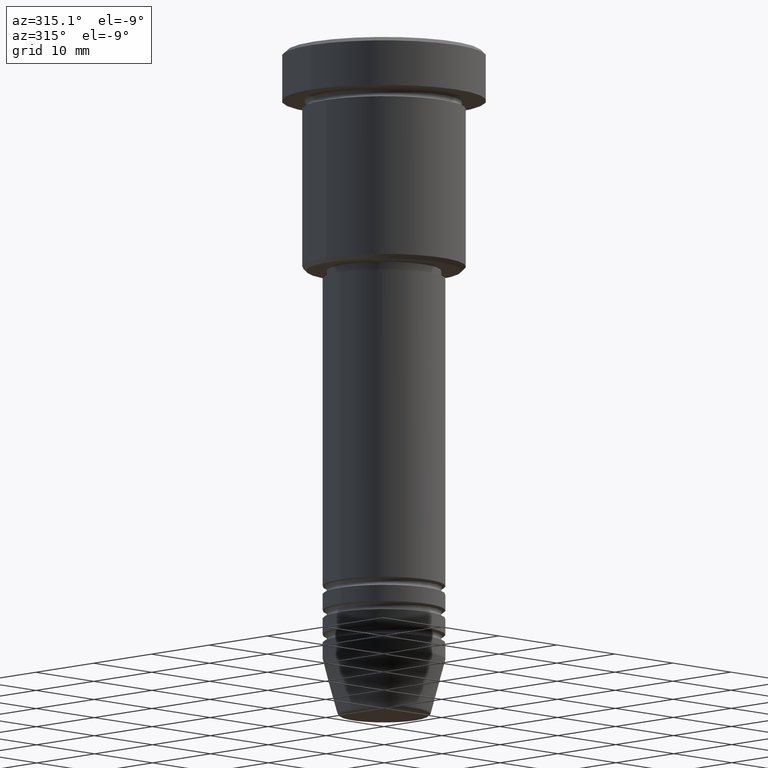
[diagram: clean part render]
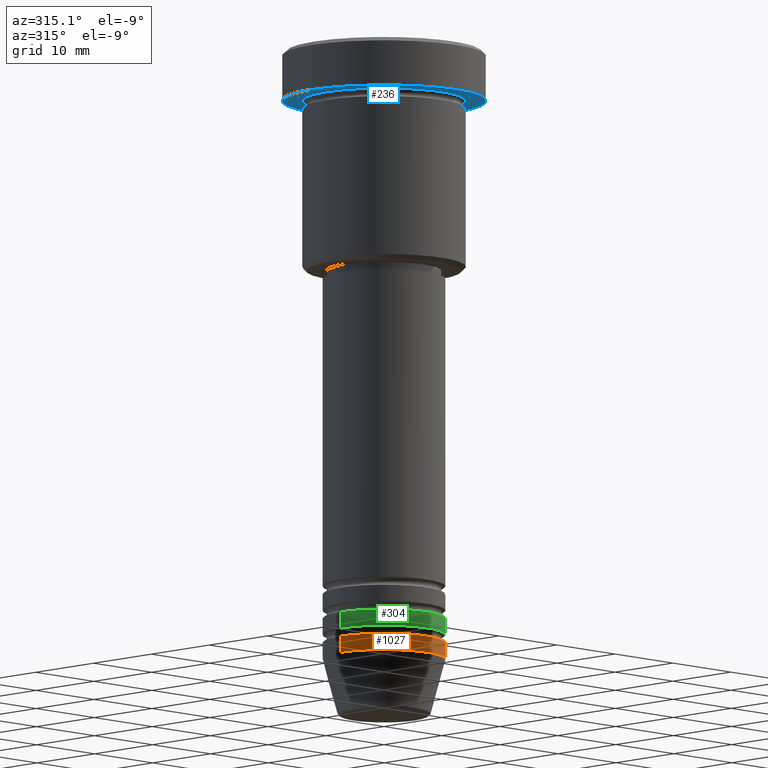
[diagram: same view with three faces highlighted in distinct colors, each labeled with its STEP entity id]
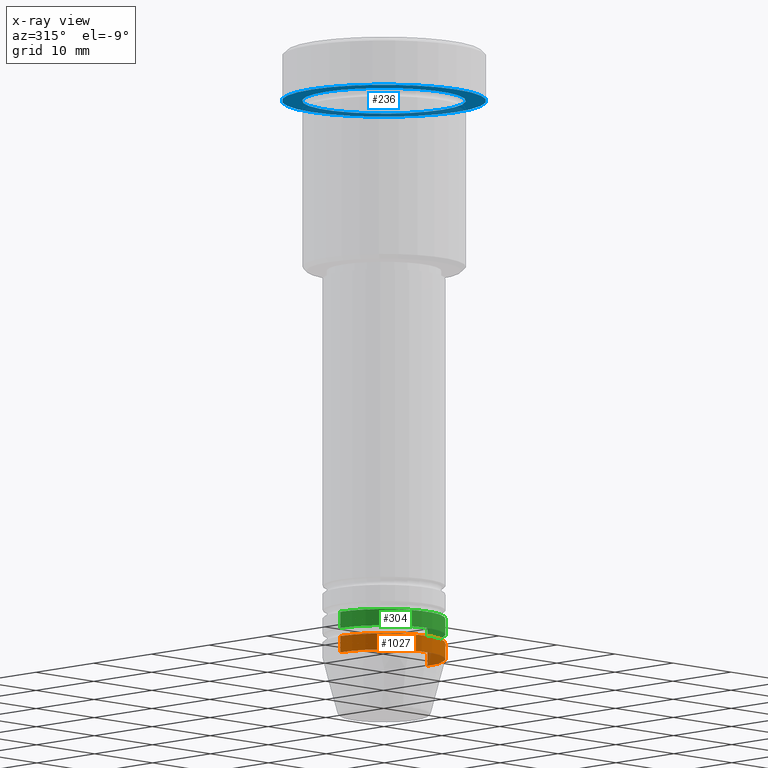
[diagram: x-ray of the same camera — body ghosted, the three highlighted faces saturated]
A machine part, auxiliary view with three faces highlighted in distinct colors.
The next image is the same camera in x-ray (body ghosted, the three faces saturated) — at least one of them is partly hidden behind the body in this view.
Their STEP definitions:

[orange] entity #1027 — the highlighted cylindrical surface (partial cylindrical patch) has radius 7.5 mm, axis along (-0, -0, 1).
#24 = CARTESIAN_POINT ( 'NONE',  ( -7.500000000000000000, 9.184850993605147944E-16, -75.00000000000001421 ) ) ;
#30 = CARTESIAN_POINT ( 'NONE',  ( 7.500000000000000000, 0.000000000000000000, -75.00000000000001421 ) ) ;
#51 = EDGE_CURVE ( 'NONE', #550, #503, #502, .T. ) ;
#53 = AXIS2_PLACEMENT_3D ( 'NONE', #1168, #1085, #89 ) ;
#80 = DIRECTION ( 'NONE',  ( -0.000000000000000000, -0.000000000000000000, 1.000000000000000000 ) ) ;
#89 = DIRECTION ( 'NONE',  ( 1.000000000000000000, 0.000000000000000000, 0.000000000000000000 ) ) ;
#109 = AXIS2_PLACEMENT_3D ( 'NONE', #254, #80, #811 ) ;
#110 = CIRCLE ( 'NONE', #53, 7.500000000000000000 ) ;
#124 = EDGE_CURVE ( 'NONE', #550, #609, #534, .T. ) ;
#136 = FACE_OUTER_BOUND ( 'NONE', #581, .T. ) ;
#212 = EDGE_CURVE ( 'NONE', #503, #1040, #110, .T. ) ;
#247 = CYLINDRICAL_SURFACE ( 'NONE', #379, 7.500000000000000000 ) ;
#254 = CARTESIAN_POINT ( 'NONE',  ( 0.000000000000000000, 0.000000000000000000, -75.00000000000001421 ) ) ;
#315 = ORIENTED_EDGE ( 'NONE', *, *, #124, .T. ) ;
#379 = AXIS2_PLACEMENT_3D ( 'NONE', #507, #896, #617 ) ;
#403 = CARTESIAN_POINT ( 'NONE',  ( 7.500000000000000000, 0.000000000000000000, 0.000000000000000000 ) ) ;
#495 = LINE ( 'NONE', #403, #969 ) ;
#502 = LINE ( 'NONE', #887, #1144 ) ;
#503 = VERTEX_POINT ( 'NONE', #626 ) ;
#507 = CARTESIAN_POINT ( 'NONE',  ( 0.000000000000000000, 0.000000000000000000, 0.000000000000000000 ) ) ;
#515 = CARTESIAN_POINT ( 'NONE',  ( 7.500000000000000000, 0.000000000000000000, -73.00000000000001421 ) ) ;
#534 = CIRCLE ( 'NONE', #109, 7.500000000000000000 ) ;
#550 = VERTEX_POINT ( 'NONE', #24 ) ;
#581 = EDGE_LOOP ( 'NONE', ( #967, #315, #767, #903 ) ) ;
#605 = DIRECTION ( 'NONE',  ( -0.000000000000000000, -0.000000000000000000, 1.000000000000000000 ) ) ;
#609 = VERTEX_POINT ( 'NONE', #30 ) ;
#617 = DIRECTION ( 'NONE',  ( 1.000000000000000000, 0.000000000000000000, 0.000000000000000000 ) ) ;
#626 = CARTESIAN_POINT ( 'NONE',  ( -7.500000000000000000, 9.184850993605147944E-16, -73.00000000000001421 ) ) ;
#661 = EDGE_CURVE ( 'NONE', #609, #1040, #495, .T. ) ;
#767 = ORIENTED_EDGE ( 'NONE', *, *, #661, .T. ) ;
#811 = DIRECTION ( 'NONE',  ( 1.000000000000000000, 0.000000000000000000, 0.000000000000000000 ) ) ;
#871 = DIRECTION ( 'NONE',  ( -0.000000000000000000, -0.000000000000000000, 1.000000000000000000 ) ) ;
#887 = CARTESIAN_POINT ( 'NONE',  ( -7.500000000000000000, 9.184850993605147944E-16, 0.000000000000000000 ) ) ;
#896 = DIRECTION ( 'NONE',  ( -0.000000000000000000, -0.000000000000000000, 1.000000000000000000 ) ) ;
#903 = ORIENTED_EDGE ( 'NONE', *, *, #212, .F. ) ;
#967 = ORIENTED_EDGE ( 'NONE', *, *, #51, .F. ) ;
#969 = VECTOR ( 'NONE', #605, 1000.000000000000000 ) ;
#1027 = ADVANCED_FACE ( 'NONE', ( #136 ), #247, .T. ) ;
#1040 = VERTEX_POINT ( 'NONE', #515 ) ;
#1085 = DIRECTION ( 'NONE',  ( -0.000000000000000000, -0.000000000000000000, 1.000000000000000000 ) ) ;
#1144 = VECTOR ( 'NONE', #871, 1000.000000000000000 ) ;
#1168 = CARTESIAN_POINT ( 'NONE',  ( 0.000000000000000000, 0.000000000000000000, -73.00000000000001421 ) ) ;

[blue] entity #236 — the highlighted planar face has unit normal (0, 0, -1).
#45 = ORIENTED_EDGE ( 'NONE', *, *, #1115, .F. ) ;
#84 = DIRECTION ( 'NONE',  ( -1.000000000000000000, 0.000000000000000000, 0.000000000000000000 ) ) ;
#101 = EDGE_CURVE ( 'NONE', #1175, #1080, #585, .T. ) ;
#107 = EDGE_LOOP ( 'NONE', ( #128, #552 ) ) ;
#121 = CIRCLE ( 'NONE', #404, 10.00000000000000000 ) ;
#128 = ORIENTED_EDGE ( 'NONE', *, *, #646, .T. ) ;
#162 = EDGE_CURVE ( 'NONE', #339, #1057, #121, .T. ) ;
#188 = CARTESIAN_POINT ( 'NONE',  ( 0.000000000000000000, 0.000000000000000000, -5.999999999999996447 ) ) ;
#213 = CARTESIAN_POINT ( 'NONE',  ( 0.000000000000000000, 0.000000000000000000, -5.999999999999996447 ) ) ;
#230 = DIRECTION ( 'NONE',  ( -0.000000000000000000, -0.000000000000000000, 1.000000000000000000 ) ) ;
#236 = ADVANCED_FACE ( 'NONE', ( #622, #644 ), #1102, .T. ) ;
#266 = DIRECTION ( 'NONE',  ( -1.000000000000000000, 0.000000000000000000, -0.000000000000000000 ) ) ;
#339 = VERTEX_POINT ( 'NONE', #412 ) ;
#342 = CARTESIAN_POINT ( 'NONE',  ( 0.000000000000000000, 12.50000000000000000, -5.999999999999996447 ) ) ;
#373 = EDGE_LOOP ( 'NONE', ( #45, #947 ) ) ;
#404 = AXIS2_PLACEMENT_3D ( 'NONE', #188, #821, #84 ) ;
#412 = CARTESIAN_POINT ( 'NONE',  ( 10.00000000000000000, 1.224646799147353256E-15, -5.999999999999996447 ) ) ;
#451 = DIRECTION ( 'NONE',  ( 1.000000000000000000, 0.000000000000000000, 0.000000000000000000 ) ) ;
#552 = ORIENTED_EDGE ( 'NONE', *, *, #162, .T. ) ;
#583 = DIRECTION ( 'NONE',  ( 1.000000000000000000, 0.000000000000000000, 0.000000000000000000 ) ) ;
#585 = CIRCLE ( 'NONE', #900, 12.50000000000000000 ) ;
#586 = AXIS2_PLACEMENT_3D ( 'NONE', #342, #712, #266 ) ;
#604 = AXIS2_PLACEMENT_3D ( 'NONE', #934, #1039, #959 ) ;
#622 = FACE_BOUND ( 'NONE', #107, .T. ) ;
#644 = FACE_OUTER_BOUND ( 'NONE', #373, .T. ) ;
#646 = EDGE_CURVE ( 'NONE', #1057, #339, #1048, .T. ) ;
#688 = CIRCLE ( 'NONE', #768, 12.50000000000000000 ) ;
#712 = DIRECTION ( 'NONE',  ( 0.000000000000000000, 0.000000000000000000, -1.000000000000000000 ) ) ;
#718 = CARTESIAN_POINT ( 'NONE',  ( 0.000000000000000000, 0.000000000000000000, -5.999999999999996447 ) ) ;
#768 = AXIS2_PLACEMENT_3D ( 'NONE', #213, #230, #583 ) ;
#788 = CARTESIAN_POINT ( 'NONE',  ( -10.00000000000000000, 0.000000000000000000, -5.999999999999996447 ) ) ;
#821 = DIRECTION ( 'NONE',  ( -0.000000000000000000, -0.000000000000000000, 1.000000000000000000 ) ) ;
#854 = CARTESIAN_POINT ( 'NONE',  ( 12.50000000000000000, 0.000000000000000000, -5.999999999999996447 ) ) ;
#900 = AXIS2_PLACEMENT_3D ( 'NONE', #718, #1096, #451 ) ;
#934 = CARTESIAN_POINT ( 'NONE',  ( 0.000000000000000000, 0.000000000000000000, -5.999999999999996447 ) ) ;
#947 = ORIENTED_EDGE ( 'NONE', *, *, #101, .F. ) ;
#959 = DIRECTION ( 'NONE',  ( -1.000000000000000000, 0.000000000000000000, 0.000000000000000000 ) ) ;
#1039 = DIRECTION ( 'NONE',  ( -0.000000000000000000, -0.000000000000000000, 1.000000000000000000 ) ) ;
#1048 = CIRCLE ( 'NONE', #604, 10.00000000000000000 ) ;
#1052 = CARTESIAN_POINT ( 'NONE',  ( -12.50000000000000000, 1.530808498934191521E-15, -5.999999999999996447 ) ) ;
#1057 = VERTEX_POINT ( 'NONE', #788 ) ;
#1080 = VERTEX_POINT ( 'NONE', #854 ) ;
#1096 = DIRECTION ( 'NONE',  ( -0.000000000000000000, -0.000000000000000000, 1.000000000000000000 ) ) ;
#1102 = PLANE ( 'NONE',  #586 ) ;
#1115 = EDGE_CURVE ( 'NONE', #1080, #1175, #688, .T. ) ;
#1175 = VERTEX_POINT ( 'NONE', #1052 ) ;

[green] entity #304 — the highlighted cylindrical surface (partial cylindrical patch) has radius 7.5 mm, axis along (-0, -0, 1).
#61 = EDGE_LOOP ( 'NONE', ( #564, #262, #66, #452 ) ) ;
#66 = ORIENTED_EDGE ( 'NONE', *, *, #897, .T. ) ;
#78 = CYLINDRICAL_SURFACE ( 'NONE', #1017, 7.500000000000000000 ) ;
#82 = DIRECTION ( 'NONE',  ( -0.000000000000000000, -0.000000000000000000, 1.000000000000000000 ) ) ;
#106 = VERTEX_POINT ( 'NONE', #549 ) ;
#120 = CARTESIAN_POINT ( 'NONE',  ( -7.500000000000000000, 9.184850993605147944E-16, -69.99999999999998579 ) ) ;
#167 = LINE ( 'NONE', #1008, #893 ) ;
#180 = DIRECTION ( 'NONE',  ( -0.000000000000000000, -0.000000000000000000, 1.000000000000000000 ) ) ;
#219 = VERTEX_POINT ( 'NONE', #249 ) ;
#220 = EDGE_CURVE ( 'NONE', #591, #629, #1164, .T. ) ;
#242 = AXIS2_PLACEMENT_3D ( 'NONE', #359, #272, #726 ) ;
#249 = CARTESIAN_POINT ( 'NONE',  ( -7.500000000000000000, 9.184850993605147944E-16, -72.00000000000000000 ) ) ;
#262 = ORIENTED_EDGE ( 'NONE', *, *, #1079, .T. ) ;
#272 = DIRECTION ( 'NONE',  ( -0.000000000000000000, -0.000000000000000000, 1.000000000000000000 ) ) ;
#304 = ADVANCED_FACE ( 'NONE', ( #898 ), #78, .T. ) ;
#310 = DIRECTION ( 'NONE',  ( 1.000000000000000000, 0.000000000000000000, 0.000000000000000000 ) ) ;
#319 = EDGE_CURVE ( 'NONE', #219, #591, #441, .T. ) ;
#359 = CARTESIAN_POINT ( 'NONE',  ( 0.000000000000000000, 0.000000000000000000, -69.99999999999998579 ) ) ;
#381 = DIRECTION ( 'NONE',  ( -0.000000000000000000, -0.000000000000000000, 1.000000000000000000 ) ) ;
#436 = DIRECTION ( 'NONE',  ( -0.000000000000000000, -0.000000000000000000, 1.000000000000000000 ) ) ;
#441 = LINE ( 'NONE', #905, #648 ) ;
#452 = ORIENTED_EDGE ( 'NONE', *, *, #220, .F. ) ;
#457 = CARTESIAN_POINT ( 'NONE',  ( 0.000000000000000000, 0.000000000000000000, 0.000000000000000000 ) ) ;
#500 = AXIS2_PLACEMENT_3D ( 'NONE', #796, #381, #310 ) ;
#544 = CIRCLE ( 'NONE', #500, 7.500000000000000000 ) ;
#549 = CARTESIAN_POINT ( 'NONE',  ( 7.500000000000000000, 0.000000000000000000, -72.00000000000000000 ) ) ;
#564 = ORIENTED_EDGE ( 'NONE', *, *, #319, .F. ) ;
#591 = VERTEX_POINT ( 'NONE', #120 ) ;
#629 = VERTEX_POINT ( 'NONE', #1130 ) ;
#648 = VECTOR ( 'NONE', #82, 1000.000000000000000 ) ;
#726 = DIRECTION ( 'NONE',  ( 1.000000000000000000, 0.000000000000000000, 0.000000000000000000 ) ) ;
#796 = CARTESIAN_POINT ( 'NONE',  ( 0.000000000000000000, 0.000000000000000000, -72.00000000000000000 ) ) ;
#809 = DIRECTION ( 'NONE',  ( 1.000000000000000000, 0.000000000000000000, 0.000000000000000000 ) ) ;
#893 = VECTOR ( 'NONE', #180, 1000.000000000000000 ) ;
#897 = EDGE_CURVE ( 'NONE', #106, #629, #167, .T. ) ;
#898 = FACE_OUTER_BOUND ( 'NONE', #61, .T. ) ;
#905 = CARTESIAN_POINT ( 'NONE',  ( -7.500000000000000000, 9.184850993605147944E-16, 0.000000000000000000 ) ) ;
#1008 = CARTESIAN_POINT ( 'NONE',  ( 7.500000000000000000, 0.000000000000000000, 0.000000000000000000 ) ) ;
#1017 = AXIS2_PLACEMENT_3D ( 'NONE', #457, #436, #809 ) ;
#1079 = EDGE_CURVE ( 'NONE', #219, #106, #544, .T. ) ;
#1130 = CARTESIAN_POINT ( 'NONE',  ( 7.500000000000000000, 0.000000000000000000, -69.99999999999998579 ) ) ;
#1164 = CIRCLE ( 'NONE', #242, 7.500000000000000000 ) ;